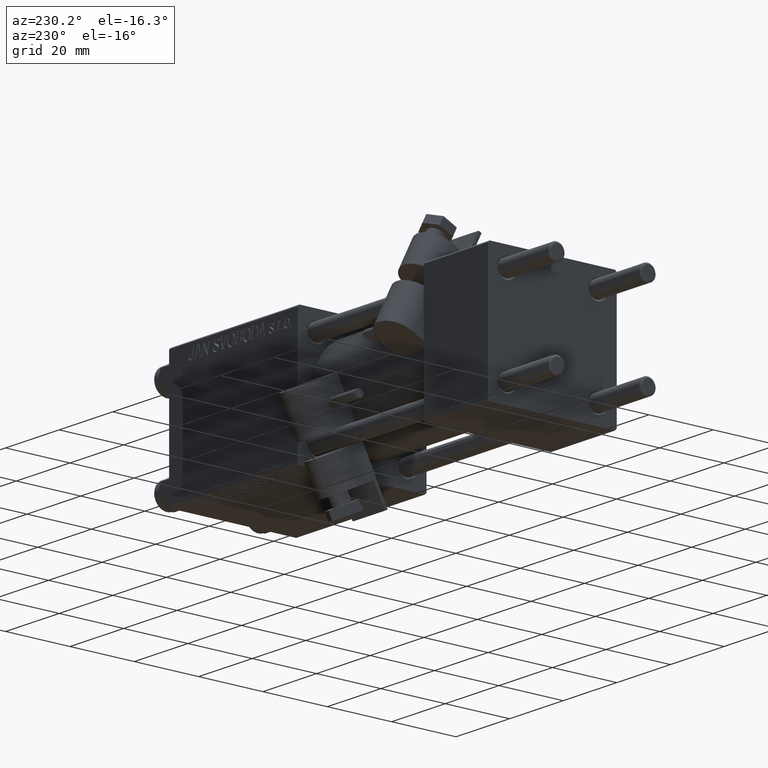
[diagram: clean part render]
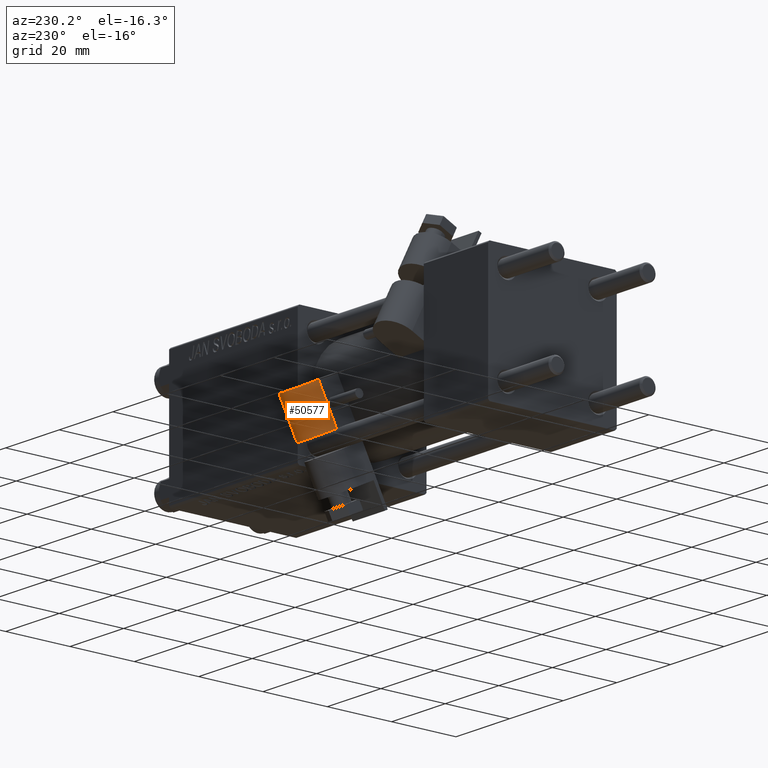
[diagram: same view with one face highlighted and labeled with its STEP entity id]
A machine part, auxiliary view. The second image highlights one B-rep face of the part: STEP entity #50577.
In plain terms, the highlighted cylindrical surface (edge-blend (fillet) strip) has radius 6 mm, axis along (-0, -0.4495, -0.8933).
Its self-contained STEP definition (entity closure, byte-faithful):
#1646 = ORIENTED_EDGE ( 'NONE', *, *, #35167, .F. ) ;
#5063 = LINE ( 'NONE', #13547, #21774 ) ;
#5579 = DIRECTION ( 'NONE',  ( -1.000000000000000000, -0.000000000000000000, -0.000000000000000000 ) ) ;
#6415 = AXIS2_PLACEMENT_3D ( 'NONE', #25768, #28645, #32242 ) ;
#9349 = CARTESIAN_POINT ( 'NONE',  ( 27.24000000000000199, 6.500000000000000000, 2.255140518769849223E-14 ) ) ;
#11318 = CIRCLE ( 'NONE', #6415, 6.000000000000002665 ) ;
#11890 = DIRECTION ( 'NONE',  ( 1.000000000000000000, 0.000000000000000000, 0.000000000000000000 ) ) ;
#12675 = AXIS2_PLACEMENT_3D ( 'NONE', #9349, #25046, #44832 ) ;
#12954 = VERTEX_POINT ( 'NONE', #27164 ) ;
#13547 = CARTESIAN_POINT ( 'NONE',  ( 27.24000000000000199, 6.500000000000000000, -5.999999999999980460 ) ) ;
#14173 = VERTEX_POINT ( 'NONE', #15018 ) ;
#15018 = CARTESIAN_POINT ( 'NONE',  ( 14.74000000000000021, 6.499999999999999112, 6.000000000000006217 ) ) ;
#15488 = CARTESIAN_POINT ( 'NONE',  ( 27.24000000000000199, 6.500000000000000000, 2.255140518769849223E-14 ) ) ;
#16253 = AXIS2_PLACEMENT_3D ( 'NONE', #15488, #11890, #43521 ) ;
#17282 = VERTEX_POINT ( 'NONE', #26713 ) ;
#18484 = ORIENTED_EDGE ( 'NONE', *, *, #40156, .F. ) ;
#21774 = VECTOR ( 'NONE', #5579, 1000.000000000000000 ) ;
#21902 = EDGE_CURVE ( 'NONE', #17282, #44993, #5063, .T. ) ;
#22787 = ORIENTED_EDGE ( 'NONE', *, *, #33849, .T. ) ;
#24471 = CARTESIAN_POINT ( 'NONE',  ( 27.24000000000000199, 6.499999999999999112, 6.000000000000006217 ) ) ;
#24805 = CARTESIAN_POINT ( 'NONE',  ( 14.74000000000000021, 6.500000000000000000, -5.999999999999980460 ) ) ;
#25046 = DIRECTION ( 'NONE',  ( -1.000000000000000000, -0.000000000000000000, -0.000000000000000000 ) ) ;
#25768 = CARTESIAN_POINT ( 'NONE',  ( 14.74000000000000021, 6.500000000000000000, 2.255140518769849223E-14 ) ) ;
#26713 = CARTESIAN_POINT ( 'NONE',  ( 27.24000000000000199, 6.500000000000000000, -5.999999999999980460 ) ) ;
#27164 = CARTESIAN_POINT ( 'NONE',  ( 27.24000000000000199, 6.499999999999999112, 6.000000000000006217 ) ) ;
#28645 = DIRECTION ( 'NONE',  ( 1.000000000000000000, 0.000000000000000000, 0.000000000000000000 ) ) ;
#28898 = FACE_OUTER_BOUND ( 'NONE', #32920, .T. ) ;
#32242 = DIRECTION ( 'NONE',  ( 0.000000000000000000, 0.000000000000000000, -1.000000000000000000 ) ) ;
#32920 = EDGE_LOOP ( 'NONE', ( #22787, #18484, #1646, #33163 ) ) ;
#33163 = ORIENTED_EDGE ( 'NONE', *, *, #21902, .T. ) ;
#33849 = EDGE_CURVE ( 'NONE', #44993, #14173, #11318, .T. ) ;
#35167 = EDGE_CURVE ( 'NONE', #17282, #12954, #47461, .T. ) ;
#40156 = EDGE_CURVE ( 'NONE', #12954, #14173, #47596, .T. ) ;
#40664 = DIRECTION ( 'NONE',  ( -1.000000000000000000, -0.000000000000000000, -0.000000000000000000 ) ) ;
#43521 = DIRECTION ( 'NONE',  ( 0.000000000000000000, 0.000000000000000000, -1.000000000000000000 ) ) ;
#44579 = CYLINDRICAL_SURFACE ( 'NONE', #12675, 6.000000000000002665 ) ;
#44832 = DIRECTION ( 'NONE',  ( 0.000000000000000000, 0.000000000000000000, 1.000000000000000000 ) ) ;
#44993 = VERTEX_POINT ( 'NONE', #24805 ) ;
#46850 = VECTOR ( 'NONE', #40664, 1000.000000000000000 ) ;
#47461 = CIRCLE ( 'NONE', #16253, 6.000000000000002665 ) ;
#47596 = LINE ( 'NONE', #24471, #46850 ) ;
#50577 = ADVANCED_FACE ( 'NONE', ( #28898 ), #44579, .T. ) ;